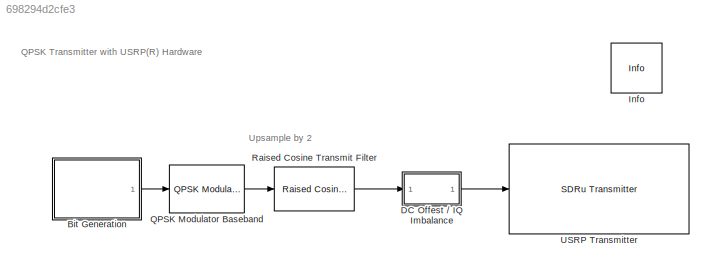
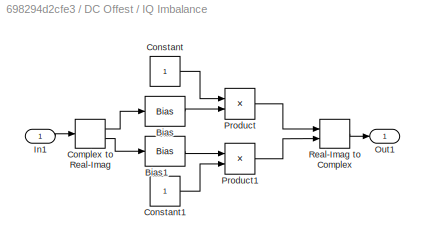
MODEL slx_698294d2cfe3
KIND model
CONFIG AbsTol = auto
CONFIG EnableMultiTasking = off
CONFIG FixedStep = auto
CONFIG InitFcn = platform = get_param([gcs '/USRP Transmitter'], 'Platform');\nsdrqpsktx = sdruqpsktransmitter_init(platform, false);\nswitch platform\n  case 'X300'\n    set_param([gcs,'/USRP Transmitter'], 'masterClkRateX300','200e6');\n  case 'X310'\n    set_param([gcs,'/USRP Transmitter'], 'masterClkRateX310','200e6');\n  case 'N300'\n    set_param([gcs,'/USRP Transmitter'], 'masterClkRateN300','153.6e6');\n  case 'N31...<+184ch>
CONFIG MaxStep = auto
CONFIG MinStep = auto
CONFIG PostLoadFcn = sdruExampleSetAvailableRadio;\n
CONFIG PreLoadFcn = platform = sdruExampleFindRadio;\nsdrqpsktx = sdruqpsktransmitter_init(platform, false);\nclear platform
CONFIG RelTol = 1e-3
CONFIG SampleTimeConstraint = Unconstrained
CONFIG SolverName = FixedStepDiscrete
CONFIG StartTime = 0.0
CONFIG StopTime = inf
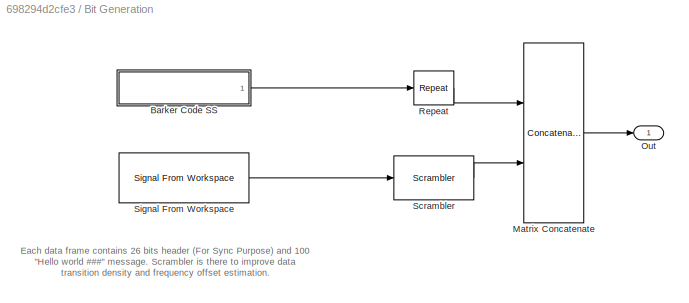
BLOCK [SubSystem] Bit Generation
  Ports = [0, 1]
  RequestExecContextInheritance = off
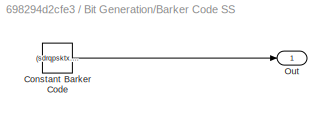
BLOCK [SubSystem] Bit Generation/Barker Code SS
  Ports = [0, 1]
  RequestExecContextInheritance = off
BLOCK [Constant] Bit Generation/Barker Code SS/Constant Barker Code
  OutDataTypeStr = double
  Value = (sdrqpsktx.BarkerCode)' > 0; % Bipolar to Unipolar
  VectorParams1D = off
BLOCK [Outport] Bit Generation/Barker Code SS/Out
  VectorParamsAs1DForOutWhenUnconnected = off
BLOCK [Concatenate] Bit Generation/Matrix Concatenate
  Mode = Multidimensional array
  Ports = [2, 1]
BLOCK [Outport] Bit Generation/Out
  VectorParamsAs1DForOutWhenUnconnected = off
BLOCK [Reference] Bit Generation/Repeat  REF=dspsigops/Repeat
  Ports = [1, 1]
  SourceBlock = dspsigops/Repeat
  SourceProductName = DSP System Toolbox
  SourceType = Repeat
  UserDataPersistent = on
BLOCK [Reference] Bit Generation/Scrambler  REF=commsequence2/Scrambler
  Ports = [1, 1]
  SourceBlock = commsequence2/Scrambler
  SourceProductName = Communications Toolbox
  SourceType = Scrambler
BLOCK [Reference] Bit Generation/Signal From Workspace  REF=dspsrcs4/Signal From
Workspace
  Ports = [0, 1]
  SourceBlock = dspsrcs4/Signal From\nWorkspace
  SourceProductName = DSP System Toolbox
  SourceType = Signal From Workspace
BLOCK [SubSystem] DC Offest // IQ Imbalance
  Ports = [1, 1]
  RequestExecContextInheritance = off
BLOCK [Bias] DC Offest // IQ Imbalance/Bias
  Bias = 0.0
  SaturateOnIntegerOverflow = off
BLOCK [Bias] DC Offest // IQ Imbalance/Bias1
  Bias = 0.0
  SaturateOnIntegerOverflow = off
BLOCK [ComplexToRealImag] DC Offest // IQ Imbalance/Complex to Real-Imag
  Ports = [1, 2]
BLOCK [Constant] DC Offest // IQ Imbalance/Constant
BLOCK [Constant] DC Offest // IQ Imbalance/Constant1
BLOCK [Inport] DC Offest // IQ Imbalance/In1
BLOCK [Outport] DC Offest // IQ Imbalance/Out1
BLOCK [Product] DC Offest // IQ Imbalance/Product
  Ports = [2, 1]
BLOCK [Product] DC Offest // IQ Imbalance/Product1
  Ports = [2, 1]
BLOCK [RealImagToComplex] DC Offest // IQ Imbalance/Real-Imag to Complex
  Ports = [2, 1]
BLOCK [Reference] Info  REF=sdrublksprivate/Info
  Ports = []
  SourceBlock = sdrublksprivate/Info
  SourceProductBaseCode = USRP
  SourceType = Info
BLOCK [Reference] QPSK Modulator Baseband  REF=commdigbbndpm3/QPSK
Modulator
Baseband
  Ports = [1, 1]
  SourceBlock = commdigbbndpm3/QPSK\nModulator\nBaseband
  SourceProductName = Communications Toolbox
  SourceType = QPSK Modulator Baseband
BLOCK [Reference] Raised Cosine Transmit Filter  REF=commfilt2/Raised Cosine
Transmit Filter
  Ports = [1, 1]
  SourceBlock = commfilt2/Raised Cosine\nTransmit Filter
  SourceProductName = Communications Toolbox
  SourceType = Raised Cosine Transmit Filter
  UserDataPersistent = on
BLOCK [Reference] USRP Transmitter  REF=commsdrhw_v2/SDRu Transmitter
  Ports = [1]
  SourceBlock = commsdrhw_v2/SDRu Transmitter
  SourceProductName = Communications Toolbox Support Package for USRP(R) Radio
  SourceType = SDRu Transmitter
ANNOTATION (root): QPSK Transmitter with USRP(R) Hardware
ANNOTATION (root): Upsample by 2
ANNOTATION Bit Generation: Each data frame contains 26 bits header (For Sync Purpose) and 100 "Hello world ###" message. Scrambler is there to improve data transition density and frequency offset estimation.
LINE Bit Generation/Barker Code SS/Constant Barker Code:1 -> Bit Generation/Barker Code SS/Out:1
LINE Bit Generation/Barker Code SS:1 -> Bit Generation/Repeat:1
LINE Bit Generation/Matrix Concatenate:1 -> Bit Generation/Out:1
LINE Bit Generation/Repeat:1 -> Bit Generation/Matrix Concatenate:1
LINE Bit Generation/Scrambler:1 -> Bit Generation/Matrix Concatenate:2
LINE Bit Generation/Signal From Workspace:1 -> Bit Generation/Scrambler:1
LINE Bit Generation:1 -> QPSK Modulator Baseband:1
LINE DC Offest // IQ Imbalance/Bias1:1 -> DC Offest // IQ Imbalance/Product1:1
LINE DC Offest // IQ Imbalance/Bias:1 -> DC Offest // IQ Imbalance/Product:2
LINE DC Offest // IQ Imbalance/Complex to Real-Imag:1 -> DC Offest // IQ Imbalance/Bias:1
LINE DC Offest // IQ Imbalance/Complex to Real-Imag:2 -> DC Offest // IQ Imbalance/Bias1:1
LINE DC Offest // IQ Imbalance/Constant1:1 -> DC Offest // IQ Imbalance/Product1:2
LINE DC Offest // IQ Imbalance/Constant:1 -> DC Offest // IQ Imbalance/Product:1
LINE DC Offest // IQ Imbalance/In1:1 -> DC Offest // IQ Imbalance/Complex to Real-Imag:1
LINE DC Offest // IQ Imbalance/Product1:1 -> DC Offest // IQ Imbalance/Real-Imag to Complex:2
LINE DC Offest // IQ Imbalance/Product:1 -> DC Offest // IQ Imbalance/Real-Imag to Complex:1
LINE DC Offest // IQ Imbalance/Real-Imag to Complex:1 -> DC Offest // IQ Imbalance/Out1:1
LINE DC Offest // IQ Imbalance:1 -> USRP Transmitter:1
LINE QPSK Modulator Baseband:1 -> Raised Cosine Transmit Filter:1
LINE Raised Cosine Transmit Filter:1 -> DC Offest // IQ Imbalance:1
